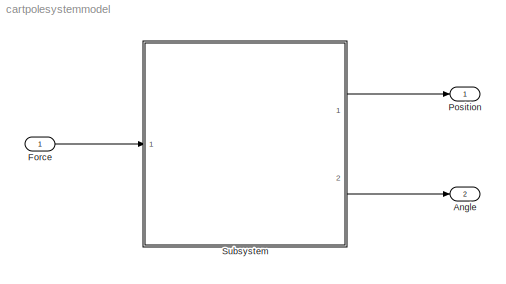
MODEL cartpolesystemmodel
KIND model
BLOCK [Outport] Angle
  IconDisplay = Port number
  Port = 2
  SID = 16
BLOCK [Inport] Force
  IconDisplay = Port number
  SID = 17
BLOCK [Outport] Position
  IconDisplay = Port number
  SID = 15
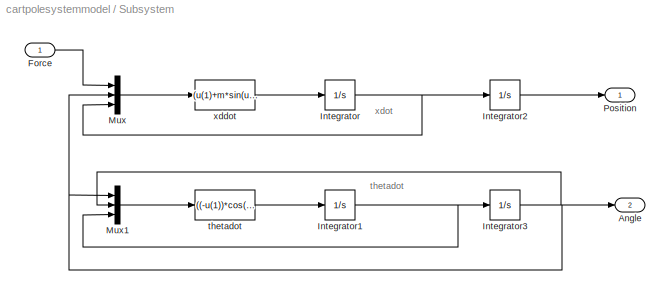
BLOCK [SubSystem] Subsystem
  Ports = [1, 2]
  RequestExecContextInheritance = off
  SID = 19
  Variant = off
BLOCK [Outport] Subsystem/Angle
  IconDisplay = Port number
  Port = 2
  SID = 22
BLOCK [Inport] Subsystem/Force
  IconDisplay = Port number
  SID = 20
BLOCK [Integrator] Subsystem/Integrator
  ContinuousStateAttributes = 'xdot'
  Ports = [1, 1]
  SID = 5
BLOCK [Integrator] Subsystem/Integrator1
  ContinuousStateAttributes = 'thetadot'
  InitialCondition = pi
  Ports = [1, 1]
  SID = 6
BLOCK [Integrator] Subsystem/Integrator2
  ContinuousStateAttributes = 'x'
  Ports = [1, 1]
  SID = 7
BLOCK [Integrator] Subsystem/Integrator3
  ContinuousStateAttributes = 'theta'
  Ports = [1, 1]
  SID = 8
BLOCK [Mux] Subsystem/Mux
  DisplayOption = bar
  Inputs = 3
  Ports = [3, 1]
  SID = 11
BLOCK [Mux] Subsystem/Mux1
  DisplayOption = bar
  Inputs = 3
  Ports = [3, 1]
  SID = 12
BLOCK [Outport] Subsystem/Position
  IconDisplay = Port number
  SID = 21
BLOCK [Fcn] Subsystem/thetadot
  Expr = ((-u(1))*cos(u(2))-m*L*((u(3))^2)*sin(u(2))*cos(u(2))+(M+m)*g*sin(u(2)))/(L*(M+m*(sin(u(2)))^2))
  SID = 2
BLOCK [Fcn] Subsystem/xddot
  Expr = (u(1)+m*sin(u(2))*(L*((u(3))^2)-g*cos(u(2)))/(M+m*(sin(u(2)))^2))
  SID = 1
ANNOTATION Subsystem: thetadot
ANNOTATION Subsystem: xdot
LINE Force:1 -> Subsystem:1
LINE Subsystem/Force:1 -> Subsystem/Mux:1
NET Subsystem/Integrator1:1 -> Subsystem/Integrator3:1, Subsystem/Mux1:3
LINE Subsystem/Integrator2:1 -> Subsystem/Position:1
NET Subsystem/Integrator3:1 -> Subsystem/Angle:1, Subsystem/Mux1:1, Subsystem/Mux1:2, Subsystem/Mux:2
NET Subsystem/Integrator:1 -> Subsystem/Integrator2:1, Subsystem/Mux:3
LINE Subsystem/Mux1:1 -> Subsystem/thetadot:1
LINE Subsystem/Mux:1 -> Subsystem/xddot:1
LINE Subsystem/thetadot:1 -> Subsystem/Integrator1:1
LINE Subsystem/xddot:1 -> Subsystem/Integrator:1
LINE Subsystem:1 -> Position:1
LINE Subsystem:2 -> Angle:1
note: NET lines group one-source signal fan-out (src -> all destinations, sorted); 1:1 wires keep LINE
